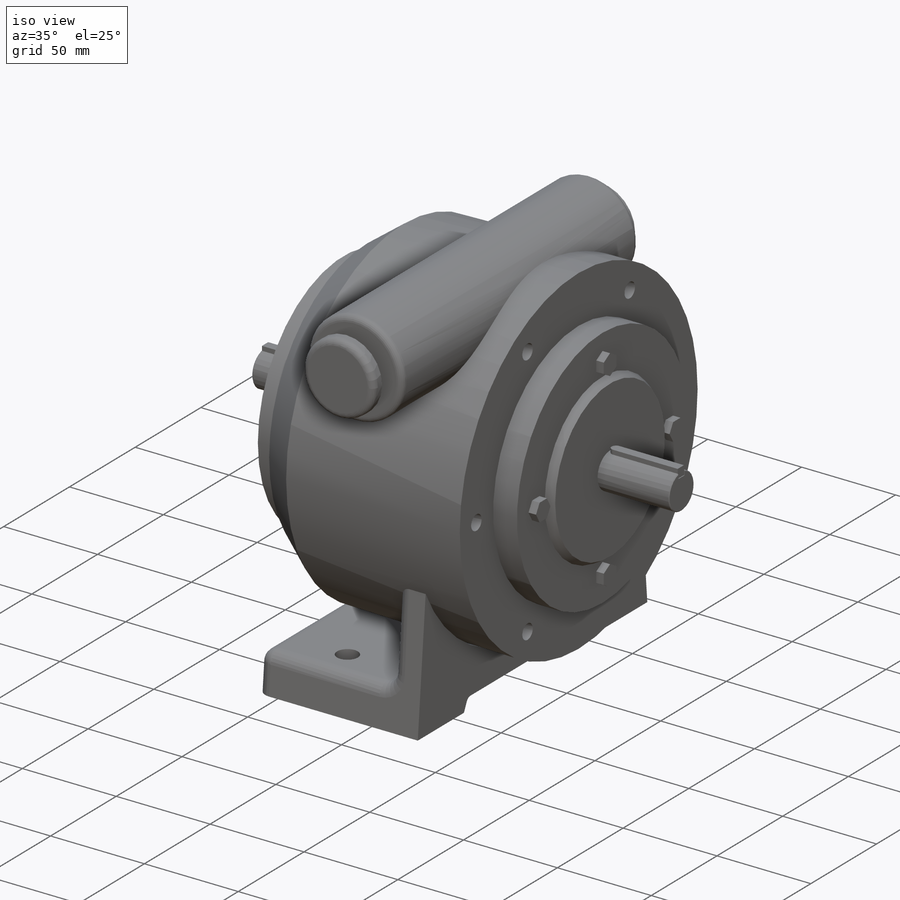
[diagram: iso view]
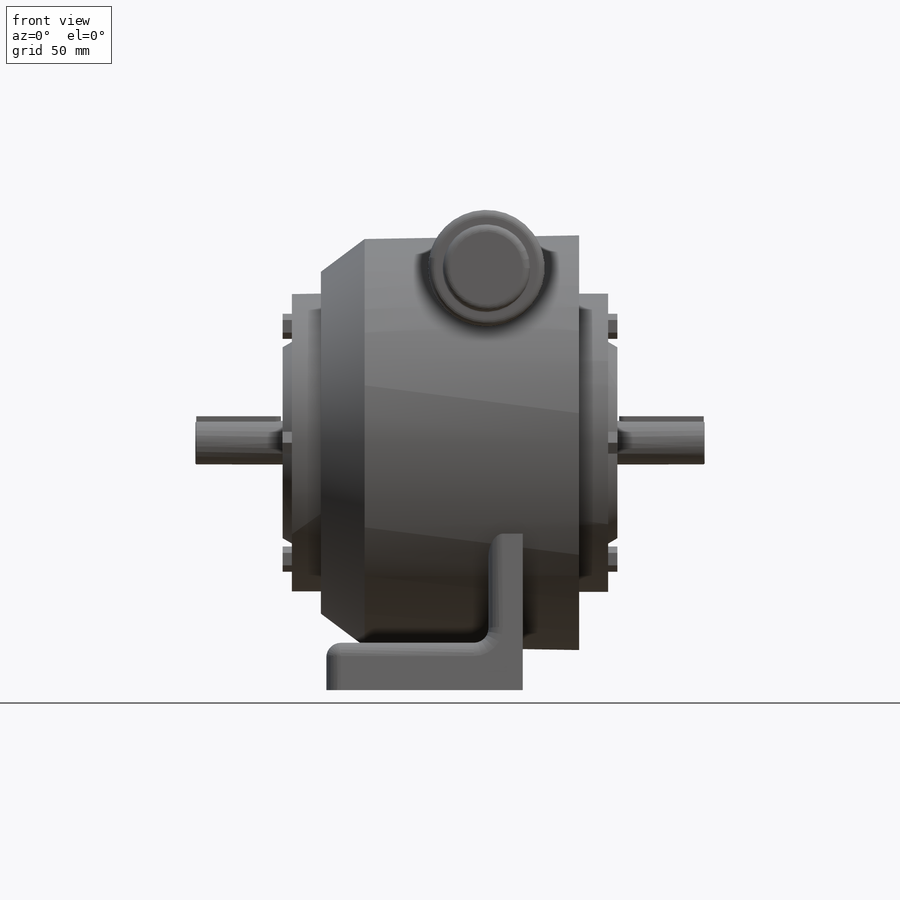
[diagram: front view]
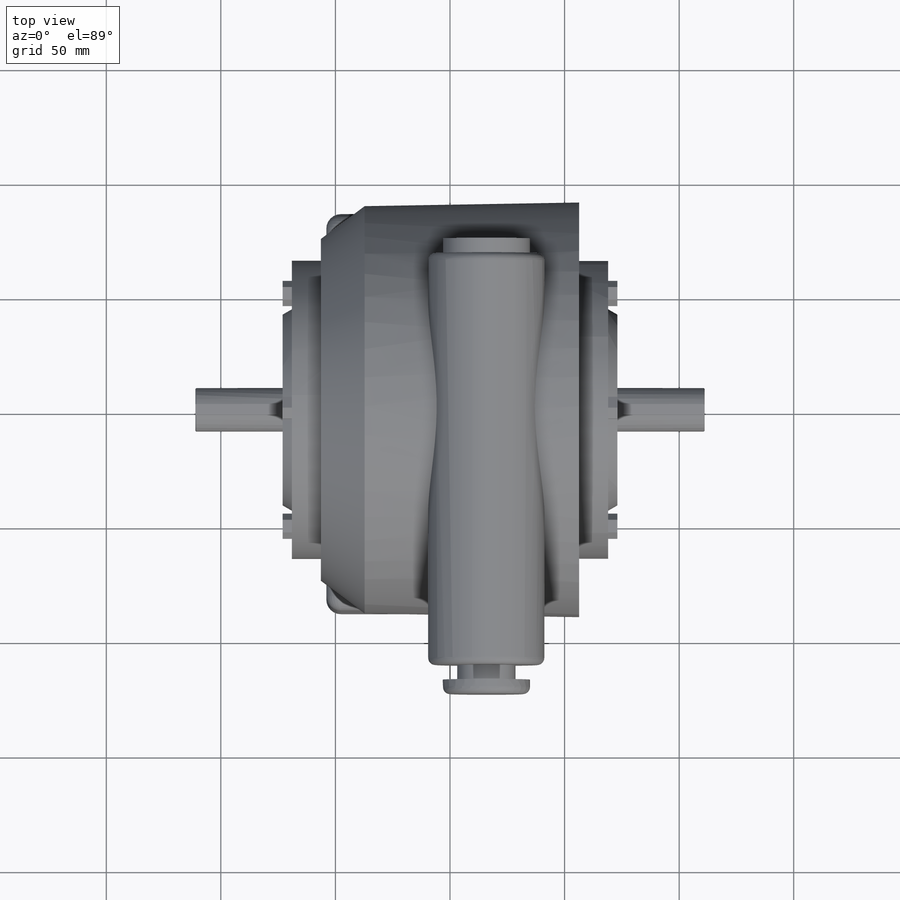
[diagram: top view]
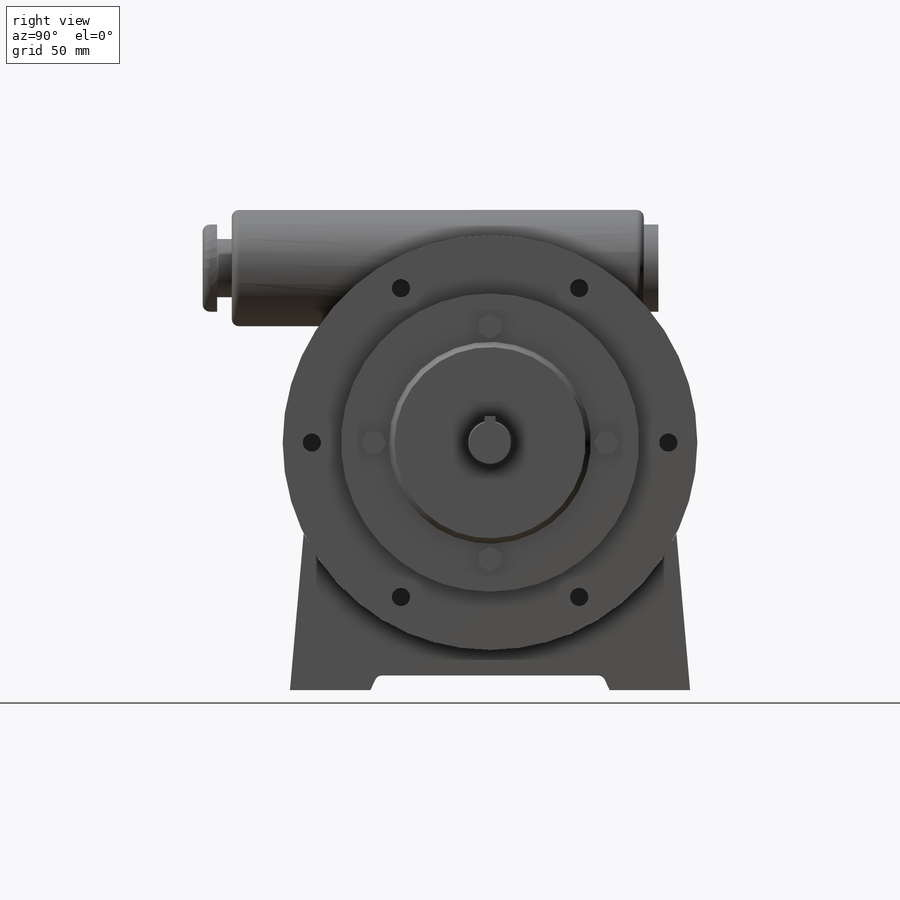
[diagram: right view]
SOLIDWORKS PART (.sldprt)
format: sldprt  version: not decoded by parser v0  size: 899,072 bytes
history: native  units: mm
features: sketch x14, extrude x8, plane x6, cut_extrude x4, mirror x3, fillet x2, material x1, revolve x1, chamfer x1, cut_revolve x1, boolean_combine x1 + 1 further entry (+17 scaffold rows collapsed)
feature tree (60):
  scaffold x17  (default folders/planes/origin — collapsed)
  material  "Material <not specified>"
  "Design Table"
  sketch  "Sketch1"  dims[Dim A=19.05mm]
  extrude  "Boss-Extrude1"  Depth=222.25mm Dim C=222.25mm
  plane  "Plane1"  Offset=38.1mm Dim E=38.1mm
  plane  "Plane2"  Offset=4mm
  sketch  "Sketch2"  dims[Dim Z=130.175mm]
  extrude  "Boss-Extrude2"  Depth=12.7mm
  sketch  "Sketch3"  dims[c1.Dim B=112.7125mm c1.D2=19.05mm c1.D3=47.625mm c2.Dim B=177.8mm c2.Dim OD=180.975mm]
  revolve  "Revolve1"  Angle=360deg
  plane  "Plane3"  Offset=79.375mm Dim I=79.375mm
  sketch  "Sketch4"  dims[c1.Dim N=174.625mm c1.Dim T=107.95mm c1.D1=~14.886863mm c2.D1=85.0deg c2.Dim Y=20.6375mm c3.D1=20.6375mm c4.D1=85.0deg]
  extrude  "Boss-Extrude3"  Depth=85.725mm Dim J=85.725mm
  sketch  "Sketch19"
  extrude  "Boss-Extrude8"  Depth=14.986mm
  plane  "Plane6"
  fillet  "Fillet1"  Radius=6.35mm
  sketch  "Sketch5"  dims[Dim U=11.1125mm Dim O_2=136.525mm Dim G_2=50.8mm D1=50.8mm]
  cut_extrude  "DD1A AND DD5A"  [1 undecoded]
  sketch  "Sketch8"  dims[c1.D1=~4.573801mm c2.D1=115.0deg c2.D2=~6.002565mm c3.D2=115.0deg c3.Dim P=20.6375mm c3.D3=19.05mm c3.D4=6.35mm]
  cut_extrude  "Cut-Extrude3"  [1 undecoded]
  chamfer  "Chamfer1"  Distance=0.381mm Angle=45deg
  sketch  "Sketch10"  dims[Dim K=4.7625mm Dim Keyway depth=2.7178mm]
  cut_extrude  "Cut-Extrude8"  Depth=3.175mm
  mirror  "Mirror2"
  sketch  "Sketch11"
  extrude  "Boss-Extrude4"  Depth=4.7625mm Dim K=4.7625mm
  mirror  "Mirror3"
  plane  "Plane4"  Offset=125.4125mm Dim R=125.4125mm
  sketch  "Sketch12"  dims[Dim S=50.8mm Dim M=184.15mm Dim D=95.25mm]
  extrude  "Boss-Extrude5"  Depth=198.882mm
  plane  "Plane5"
  sketch  "Sketch13"  dims[D1=6.35mm D2=6.35mm D3=6.35mm D4=6.35mm]
  cut_revolve  "Cut-Revolve1"  Angle=360deg
  sketch  "Sketch14"  dims[Dim W=7.9375mm Dim X=155.575mm D2=6.0]
  cut_extrude  "Cut-Extrude9"  Depth=15.875mm Dim Face hole depth=15.875mm
  sketch  "Sketch16"  dims[D1=9.525mm D3=101.6mm D2=4.0]
  extrude  "Boss-Extrude6"  [1 undecoded]
  sketch  "Sketch18"  dims[D1=1.27mm]
  extrude  "Boss-Extrude7"  [1 undecoded]
  mirror  "Mirror4"
  boolean_combine  "Combine1"
  fillet  "Fillet2"  Radius=3.175mm
decode coverage: 25 of 35 modeling features carry decoded parameters; 1 rows unclassified (native names shown)
note: ~ marks probable driven/reference dimensions
note: 4 parameter values undecoded
summary: no parameter record found for 4 features
note: suppression state not decoded; provenance and decode notes live in map.json
